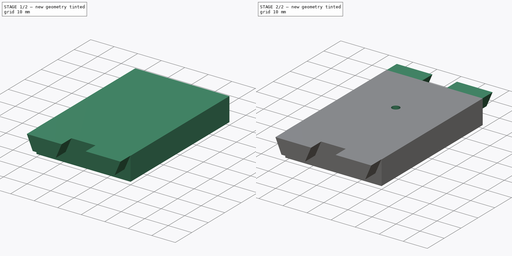
[diagram: build sequence overview — one tinted view per stage of 2, left to right]
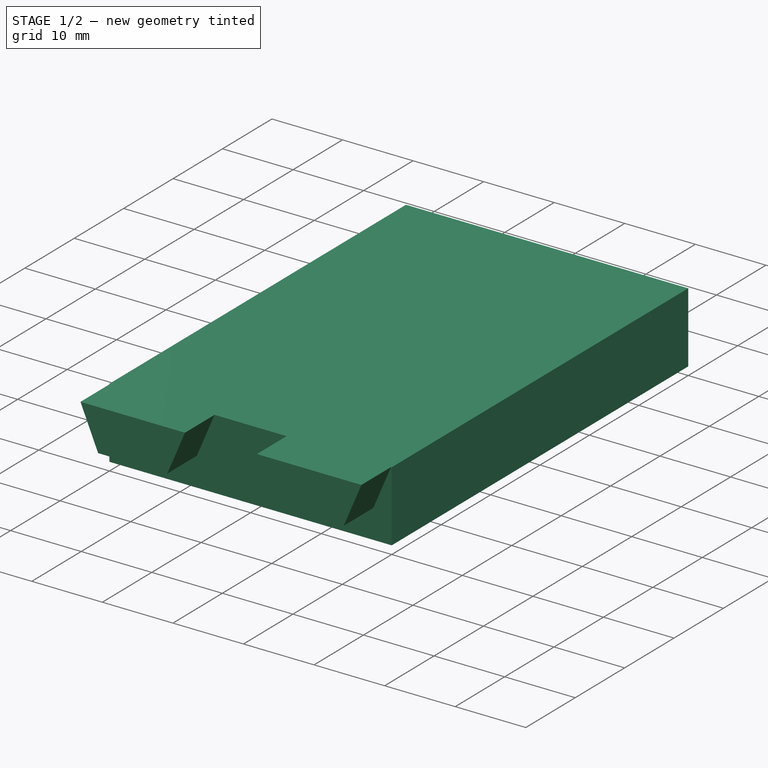
[diagram: stage 1 of 2 — iso view after this stage's code; geometry added in this stage tinted green]
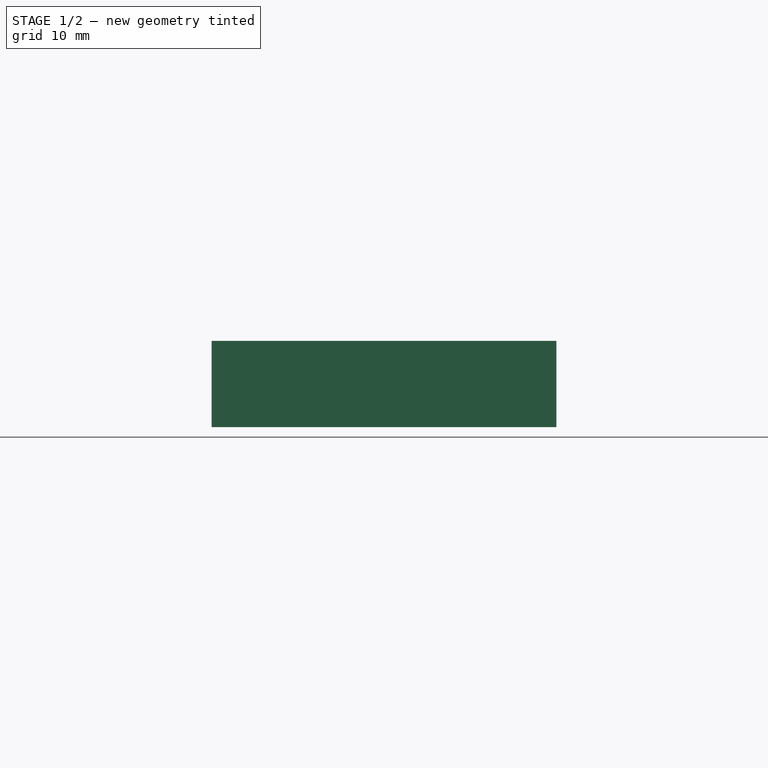
[diagram: stage 1 of 2 — front view after this stage's code; geometry added in this stage tinted green]
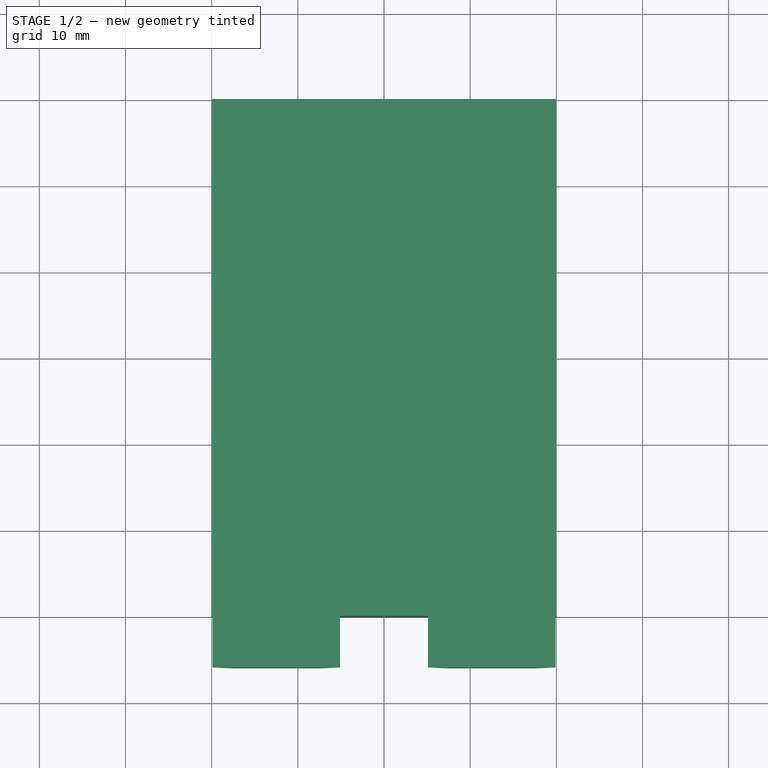
[diagram: stage 1 of 2 — top view after this stage's code; geometry added in this stage tinted green]
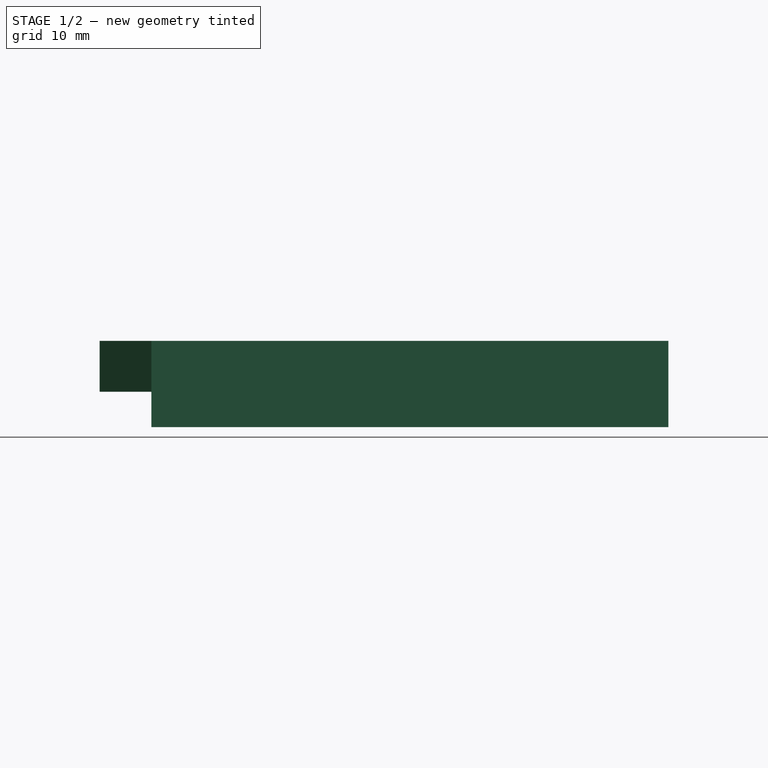
[diagram: stage 1 of 2 — right view after this stage's code; geometry added in this stage tinted green]
FCSTD DOCUMENT  (FreeCAD 0.17R13541 (Git))
Label: side_servo_mount_b
License: All rights reserved
LicenseURL: http://en.wikipedia.org/wiki/All_rights_reserved
objects: Sketcher::SketchObject×4, PartDesign::Pad×3, PartDesign::Pocket×1, PartDesign::Body×1
note: 13 computed .brp shape members not serialized (recipe doc carries the construction recipe); baked Part::Feature solids carry a one-line shape summary decoded from their .brp

FEATURE [Sketcher::SketchObject] Sketch
  MapMode = 5
  Support = -> [XY_Plane]
  sketch-geometry (4):
    g0: LineSegment StartX=0 StartY=60 StartZ=0 EndX=40 EndY=60 EndZ=0
    g1: LineSegment StartX=40 StartY=60 StartZ=0 EndX=40 EndY=0 EndZ=0
    g2: LineSegment StartX=40 StartY=0 StartZ=0 EndX=0 EndY=0 EndZ=0
    g3: LineSegment StartX=0 StartY=0 StartZ=0 EndX=0 EndY=60 EndZ=0
  constraints (11):
    c: Coincident(g0,g1)
    c: Coincident(g1,g2)
    c: Coincident(g2,g3)
    c: Coincident(g3,g0)
    c: Horizontal(g0)
    c: Horizontal(g2)
    c: Vertical(g1)
    c: Vertical(g3)
    c: Coincident(g2,g-1)
    c: DistanceX(g0,g0) = 40
    c: DistanceY(g3,g3) = 60
FEATURE [PartDesign::Pad] Pad
  Length = 10
  Length2 = 100
  Profile = -> Sketch
  Type = 0
FEATURE [Sketcher::SketchObject] Sketch001
  MapMode = 5
  Placement = pos=(0,0,0) rot=(1,0,0;1.5708rad)
  Support = -> [Pad]
  sketch-geometry (8):
    g0: LineSegment StartX=0.1 StartY=10 StartZ=0 EndX=14.9 EndY=10 EndZ=0
    g1: LineSegment StartX=2.6 StartY=4.1 StartZ=0 EndX=12.4 EndY=4.1 EndZ=0
    g2: LineSegment StartX=12.4 StartY=4.1 StartZ=0 EndX=14.9 EndY=10 EndZ=0
    g3: LineSegment StartX=0.1 StartY=10 StartZ=0 EndX=2.6 EndY=4.1 EndZ=0
    g4: LineSegment StartX=25.1 StartY=10 StartZ=0 EndX=39.9 EndY=10 EndZ=0
    g5: LineSegment StartX=27.6 StartY=4.1 StartZ=0 EndX=37.4 EndY=4.1 EndZ=0
    g6: LineSegment StartX=37.4 StartY=4.1 StartZ=0 EndX=39.9 EndY=10 EndZ=0
    g7: LineSegment StartX=25.1 StartY=10 StartZ=0 EndX=27.6 EndY=4.1 EndZ=0
  constraints (24):
    c: Horizontal(g1)
    c: Coincident(g0,g2)
    c: Horizontal(g0)
    c: Coincident(g0,g3)
    c: Coincident(g1,g3)
    c: Coincident(g2,g1)
    c: Equal(g3,g2)
    c: DistanceX(g0,g0) = 14.8
    c: DistanceX(g1,g1) = 9.8
    c: DistanceY(g1,g0) = 5.9
    c: Horizontal(g5)
    c: Coincident(g4,g6)
    c: Horizontal(g4)
    c: Coincident(g4,g7)
    c: Coincident(g5,g7)
    c: Coincident(g6,g5)
    c: Equal(g7,g6)
    c: Equal(g0,g4) = 14.8
    c: Equal(g1,g5) = 9.8
    c: DistanceY(g5,g4) = 5.9
    c: DistanceX(g0,g4) = 10.2
    c: PointOnObject(g0,g4)
    c: DistanceX(g-1,g0) = 0.1
    c: DistanceY(g-1,g0) = 10
FEATURE [PartDesign::Pad] Pad001
  BaseFeature = -> Pad
  Length = 6
  Length2 = 100
  Profile = -> Sketch001
  Type = 0
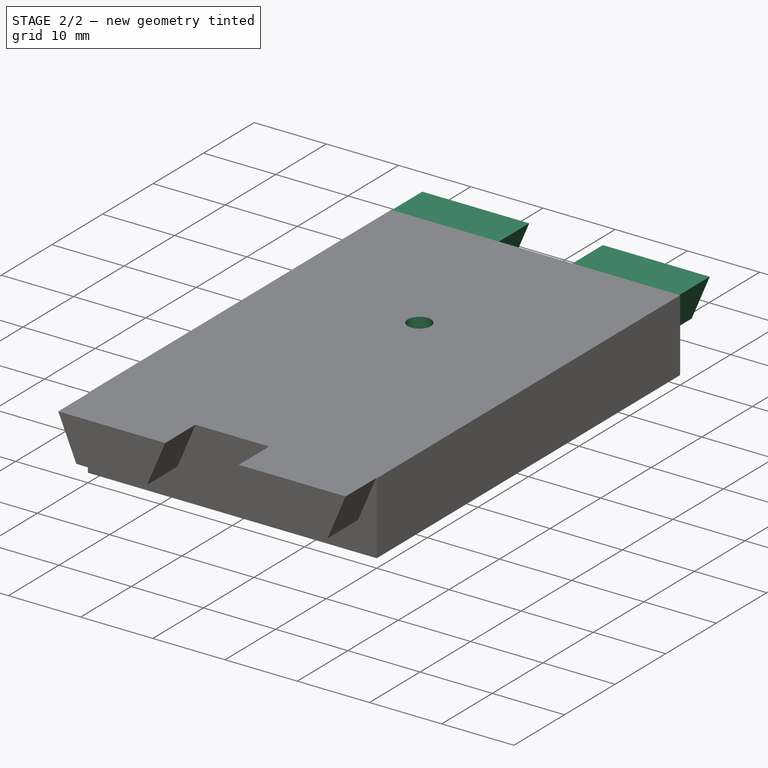
[diagram: stage 2 of 2 — iso view after this stage's code; geometry added in this stage tinted green]
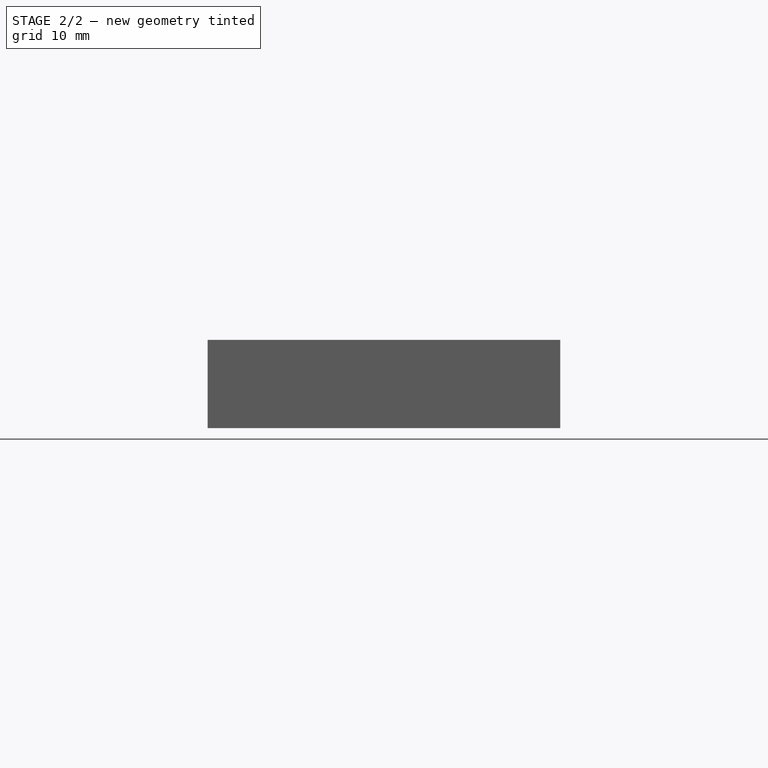
[diagram: stage 2 of 2 — front view after this stage's code; geometry added in this stage tinted green]
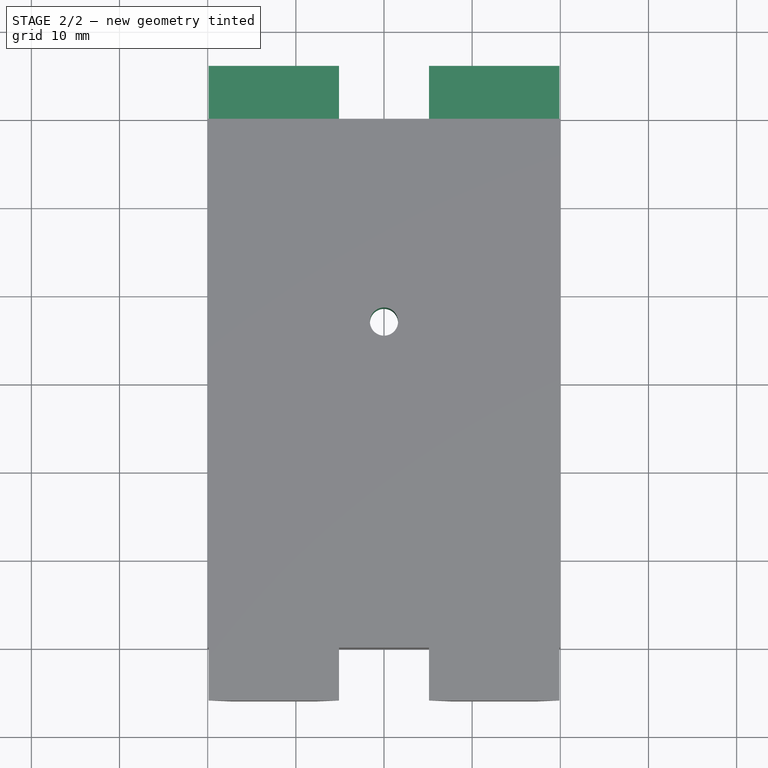
[diagram: stage 2 of 2 — top view after this stage's code; geometry added in this stage tinted green]
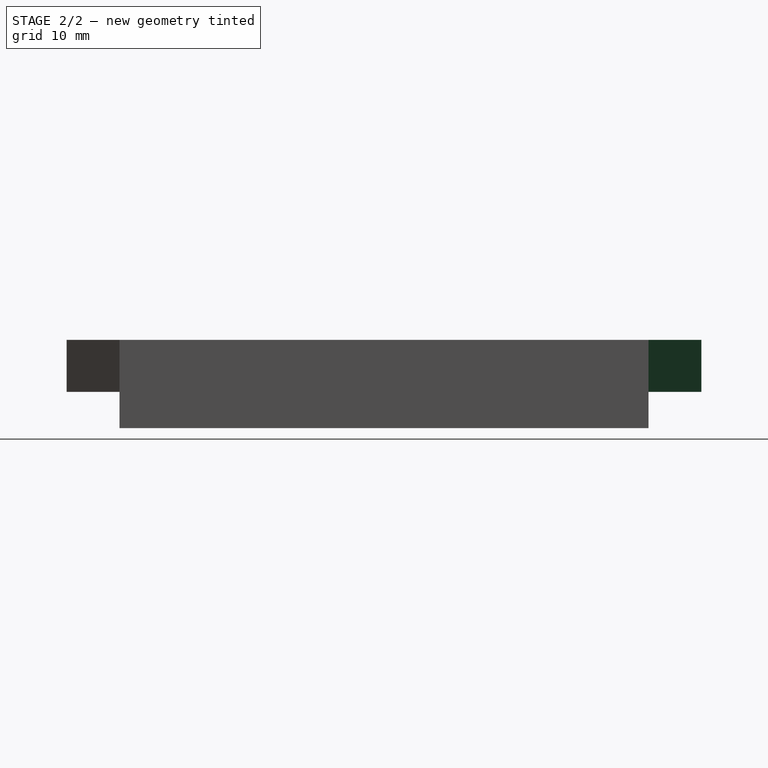
[diagram: stage 2 of 2 — right view after this stage's code; geometry added in this stage tinted green]
FEATURE [Sketcher::SketchObject] Sketch002
  MapMode = 5
  Placement = pos=(0,60,0) rot=(0,0.707107,0.707107;3.14159rad)
  Support = -> [Pad001]
  sketch-geometry (8):
    g0: LineSegment StartX=-39.9 StartY=10 StartZ=0 EndX=-25.1 EndY=10 EndZ=0
    g1: LineSegment StartX=-37.4 StartY=4.1 StartZ=0 EndX=-27.6 EndY=4.1 EndZ=0
    g2: LineSegment StartX=-39.9 StartY=10 StartZ=0 EndX=-37.4 EndY=4.1 EndZ=0
    g3: LineSegment StartX=-27.6 StartY=4.1 StartZ=0 EndX=-25.1 EndY=10 EndZ=0
    g4: LineSegment StartX=-14.9 StartY=10 StartZ=0 EndX=-0.1 EndY=10 EndZ=0
    g5: LineSegment StartX=-12.4 StartY=4.1 StartZ=0 EndX=-2.6 EndY=4.1 EndZ=0
    g6: LineSegment StartX=-14.9 StartY=10 StartZ=0 EndX=-12.4 EndY=4.1 EndZ=0
    g7: LineSegment StartX=-2.6 StartY=4.1 StartZ=0 EndX=-0.1 EndY=10 EndZ=0
  constraints (24):
    c: Horizontal(g0)
    c: Horizontal(g1)
    c: Coincident(g0,g3)
    c: Coincident(g0,g2)
    c: Coincident(g1,g2)
    c: Coincident(g1,g3)
    c: DistanceX(g0,g0) = 14.8
    c: DistanceX(g1,g1) = 9.8
    c: Equal(g3,g2)
    c: DistanceY(g1,g0) = 5.9
    c: Horizontal(g4)
    c: Horizontal(g5)
    c: Coincident(g4,g7)
    c: Coincident(g4,g6)
    c: Coincident(g5,g6)
    c: Coincident(g5,g7)
    c: Equal(g0,g4) = 14.8
    c: Equal(g1,g5) = 9.8
    c: Equal(g7,g6)
    c: DistanceY(g5,g4) = 5.9
    c: DistanceX(g0,g4) = 10.2
    c: PointOnObject(g0,g4)
    c: DistanceX(g4,g-1) = 0.1
    c: DistanceY(g-1,g4) = 10
FEATURE [PartDesign::Pad] Pad002
  BaseFeature = -> Pad001
  Length = 6
  Length2 = 100
  Profile = -> Sketch002
  Type = 0
FEATURE [Sketcher::SketchObject] Sketch003
  MapMode = 5
  Placement = pos=(0,0,10) rot=(0,0,1;0rad)
  Support = -> [Pad002]
  sketch-geometry (1):
    g0: Circle CenterX=20 CenterY=37 CenterZ=0 NormalX=0 NormalY=0 NormalZ=1 AngleXU=0 Radius=1.6
  constraints (3):
    c: Radius(g0) = 1.6
    c: DistanceY(g-1,g0) = 37
    c: DistanceX(g-1,g0) = 20
FEATURE [PartDesign::Pocket] Pocket
  BaseFeature = -> Pad002
  Length = 10
  Length2 = 100
  Profile = -> Sketch003
  Type = 0
FEATURE [PartDesign::Body] Body
  Group = -> [Sketch,Pad,Sketch001,Pad001,Sketch002,Pad002,Sketch003,Pocket]
  Origin = -> Origin
  Tip = -> Pocket
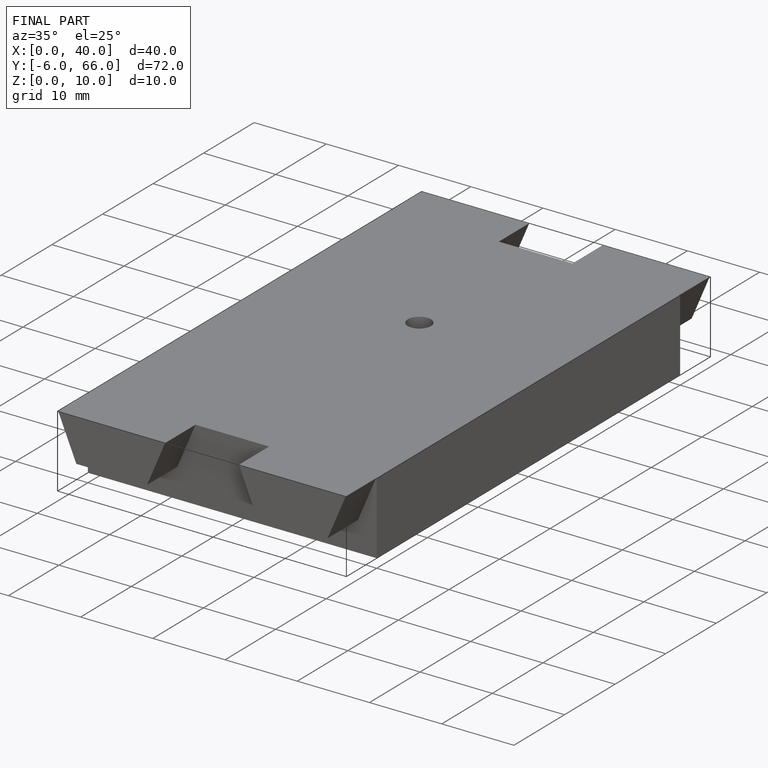
[diagram: finished part — iso view with bounding-box wireframe]
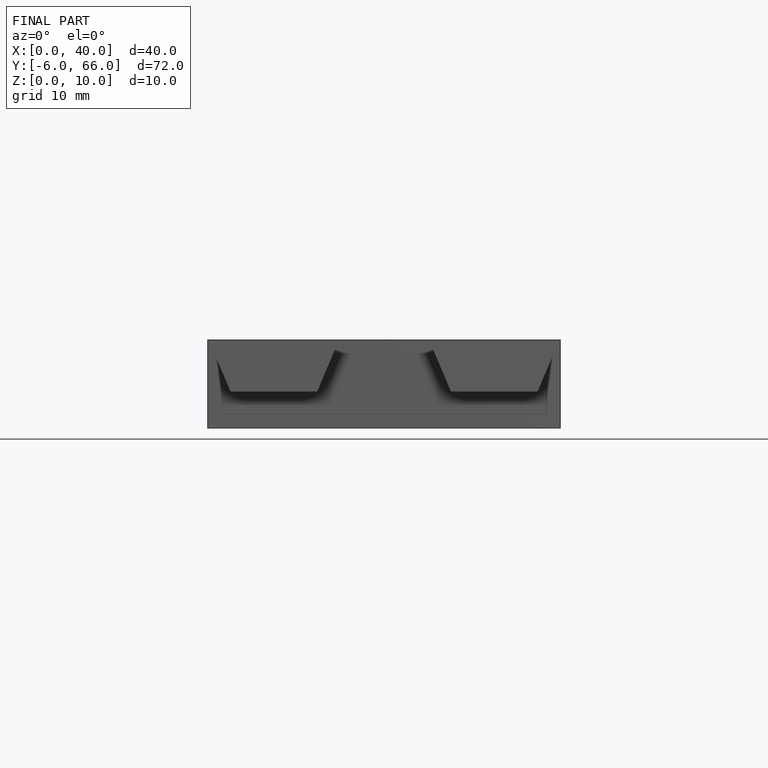
[diagram: finished part — front view with bounding-box wireframe]
